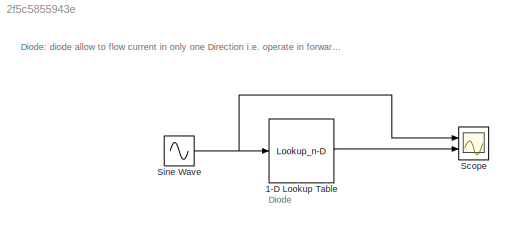
MODEL slx_2f5c5855943e
KIND model
CONFIG AbsTol = auto
CONFIG EnableMultiTasking = off
CONFIG FixedStep = auto
CONFIG MaxStep = auto
CONFIG MinStep = auto
CONFIG RelTol = 1e-3
CONFIG SampleTimeConstraint = Unconstrained
CONFIG SolverName = VariableStepAuto
CONFIG StartTime = 0.0
CONFIG StopTime = 10.0
BLOCK [Lookup_n-D] 1-D Lookup Table
  BreakpointsForDimension1 = [-5,-4,-3,-2,-1,0,1,2,3,4,5]
  InputPortMap = u0
  InternalRulePriority = Speed
  NumberOfTableDimensions = 1
  OutMax = [1]
  OutMin = [0]
  Ports = [1, 1]
  RndMeth = Simplest
  Table = [0,0,0,0,0,0,0.7615941559557649,0.9640275800758169,0.9950547536867305,0.999329299739067,0.9999092042625951]
BLOCK [Scope] Scope
  Floating = off
  NumInputPorts = 2
  Ports = [2]
  ScopeSpecificationString = Simulink.scopes.TimeScopeBlockCfg('CurrentConfiguration', extmgr.ConfigurationSet(extmgr.Configuration('Core','General UI',true),extmgr.Configuration('Core','Source UI',true),extmgr.Configuration('Sources','WiredSimulink',true),extmgr.Configuration('Visuals','Time Domain',true,'SerializedDisplays',{struct('MinYLimReal','-1.24563','MaxYLimReal','1.24904','YLabelReal','','MinYLimMag','0.00000','MaxY...<+2030ch>
BLOCK [Sin] Sine Wave
  Ports = [0, 1]
  SampleTime = 0
ANNOTATION (root): Diode
ANNOTATION (root): Diode: diode allow to flow current in only one Direction i.e. operate in forward baise
LINE 1-D Lookup Table:1 -> Scope:2
NET Sine Wave:1 -> 1-D Lookup Table:1, Scope:1
note: NET lines group one-source signal fan-out (src -> all destinations, sorted); 1:1 wires keep LINE
